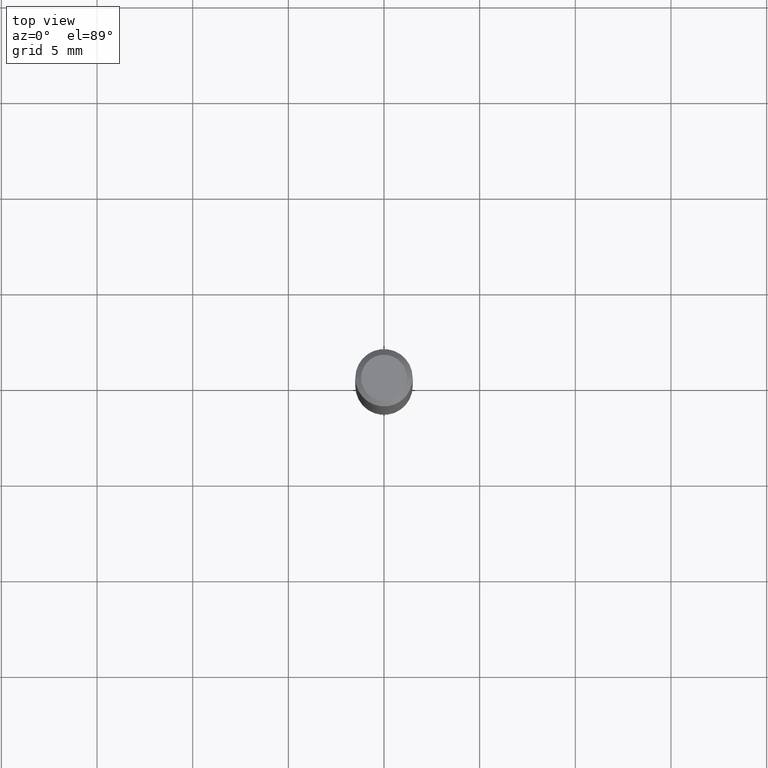
[diagram: clean part render]
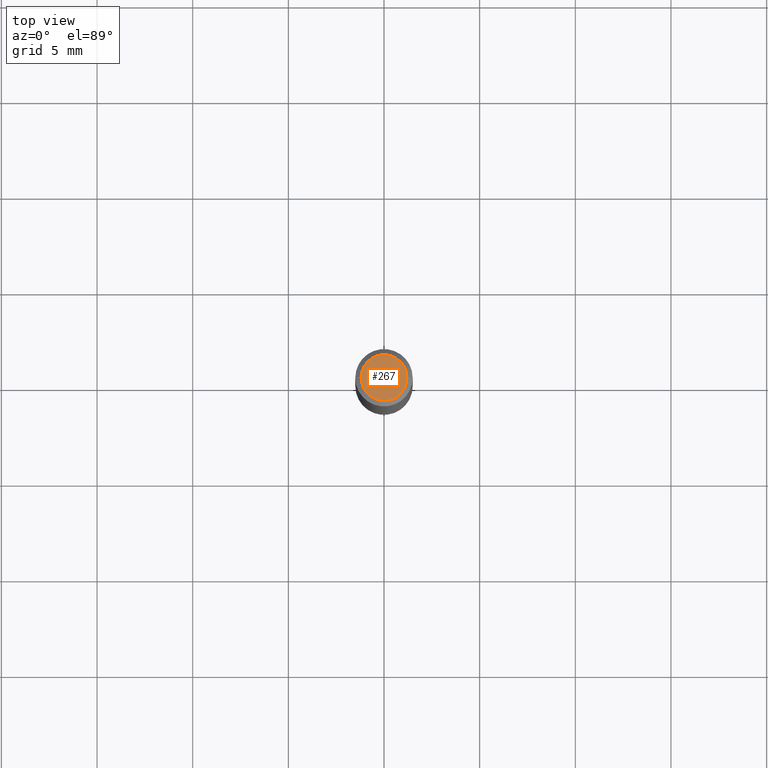
[diagram: same view with one face highlighted and labeled with its STEP entity id]
A machine part, top view. The second image highlights one B-rep face of the part: STEP entity #267.
In plain terms, the highlighted planar face has unit normal (0, -0, -1).
Its self-contained STEP definition (entity closure, byte-faithful):
#3 = CARTESIAN_POINT ( 'NONE',  ( 0.04724000000000000421, -3.852183633974369345E-16, -3.380025165621689721E-19 ) ) ;
#11 = CARTESIAN_POINT ( 'NONE',  ( 8.265746106709734507E-48, -1.180129479067563789E-33, -3.380025165646692144E-19 ) ) ;
#59 = ORIENTED_EDGE ( 'NONE', *, *, #240, .T. ) ;
#69 = DIRECTION ( 'NONE',  ( 2.438088387897960049E-29, -3.491481338843145188E-15, -1.000000000000000000 ) ) ;
#101 = DIRECTION ( 'NONE',  ( -2.445468806185136597E-29, 3.491481338843145583E-15, 1.000000000000000000 ) ) ;
#132 = CIRCLE ( 'NONE', #388, 0.04724000000000000421 ) ;
#140 = DIRECTION ( 'NONE',  ( 1.000000000000000000, -6.982962677686266711E-15, 4.876185090822587894E-29 ) ) ;
#178 = FACE_OUTER_BOUND ( 'NONE', #326, .T. ) ;
#226 = EDGE_CURVE ( 'NONE', #336, #379, #132, .T. ) ;
#240 = EDGE_CURVE ( 'NONE', #379, #336, #316, .T. ) ;
#250 = DIRECTION ( 'NONE',  ( 1.000000000000000000, -6.982962677686266711E-15, 4.876185090822587894E-29 ) ) ;
#267 = ADVANCED_FACE ( 'NONE', ( #178 ), #407, .F. ) ;
#283 = CARTESIAN_POINT ( 'NONE',  ( -0.04724000000000000421, 3.504923541997677355E-16, -3.380025165670481712E-19 ) ) ;
#305 = ORIENTED_EDGE ( 'NONE', *, *, #226, .T. ) ;
#316 = CIRCLE ( 'NONE', #375, 0.04724000000000000421 ) ;
#320 = DIRECTION ( 'NONE',  ( -1.000000000000000000, 6.982962677686265922E-15, -4.876176775795935793E-29 ) ) ;
#325 = AXIS2_PLACEMENT_3D ( 'NONE', #360, #69, #320 ) ;
#326 = EDGE_LOOP ( 'NONE', ( #305, #59 ) ) ;
#336 = VERTEX_POINT ( 'NONE', #283 ) ;
#360 = CARTESIAN_POINT ( 'NONE',  ( 4.132873053354867254E-48, -5.900647395337818946E-34, -1.690012582823346072E-19 ) ) ;
#363 = DIRECTION ( 'NONE',  ( -2.445468806185136597E-29, 3.491481338843145583E-15, 1.000000000000000000 ) ) ;
#375 = AXIS2_PLACEMENT_3D ( 'NONE', #11, #101, #250 ) ;
#379 = VERTEX_POINT ( 'NONE', #3 ) ;
#388 = AXIS2_PLACEMENT_3D ( 'NONE', #434, #363, #140 ) ;
#407 = PLANE ( 'NONE',  #325 ) ;
#434 = CARTESIAN_POINT ( 'NONE',  ( 8.265746106709734507E-48, -1.180129479067563789E-33, -3.380025165646692144E-19 ) ) ;